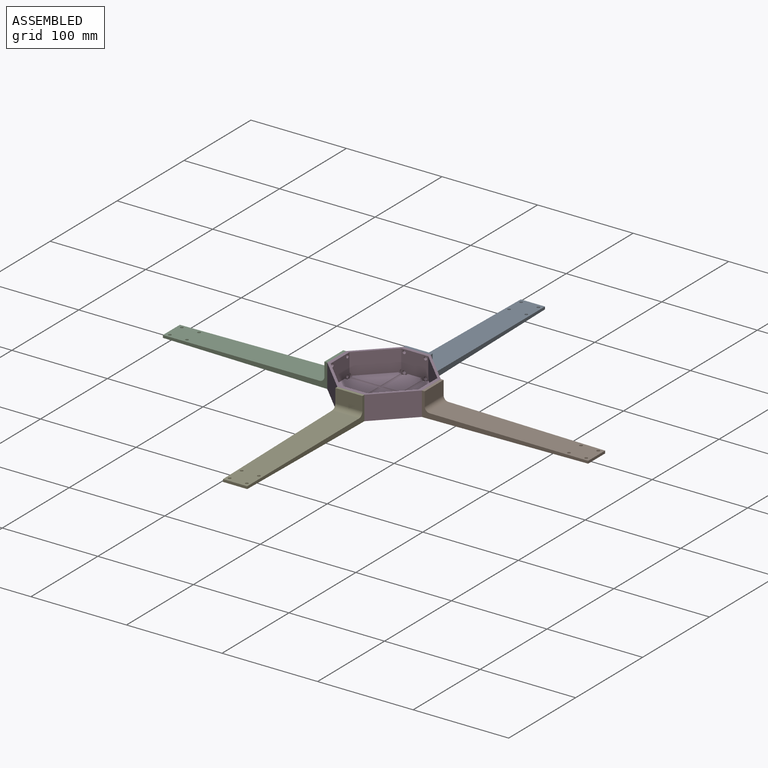
[diagram: assembled view]
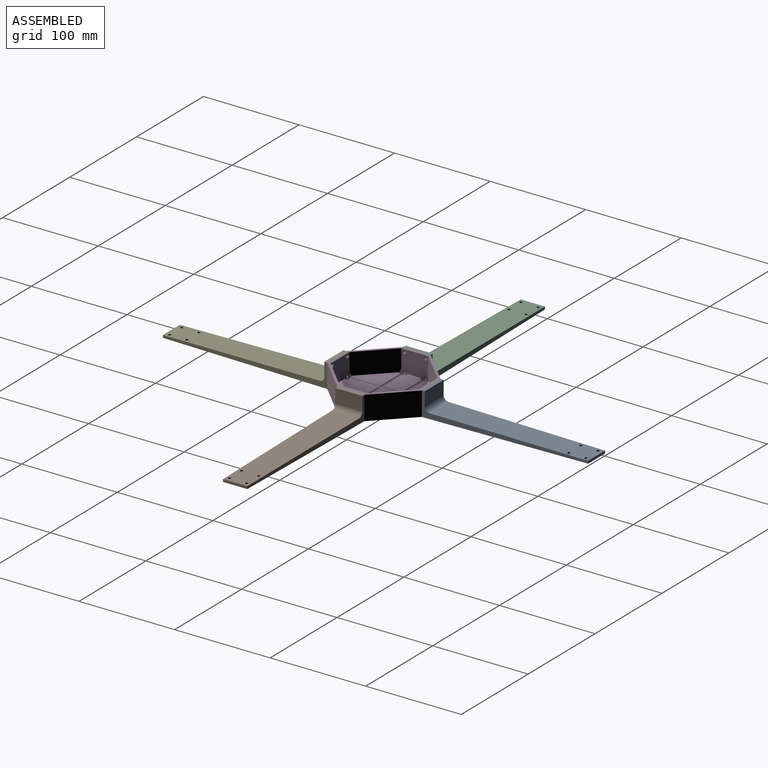
[diagram: assembled view, second angle]
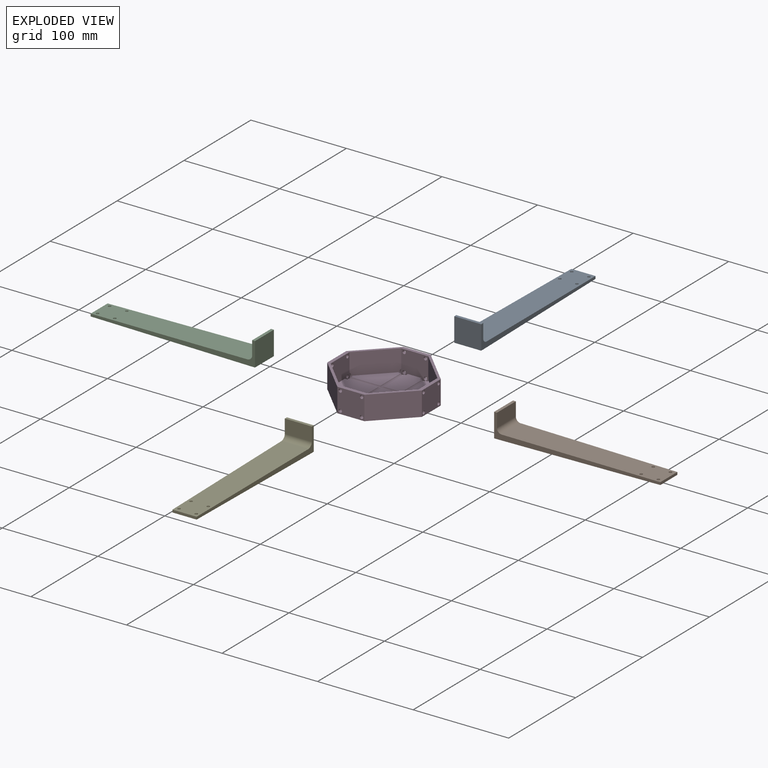
[diagram: exploded view]
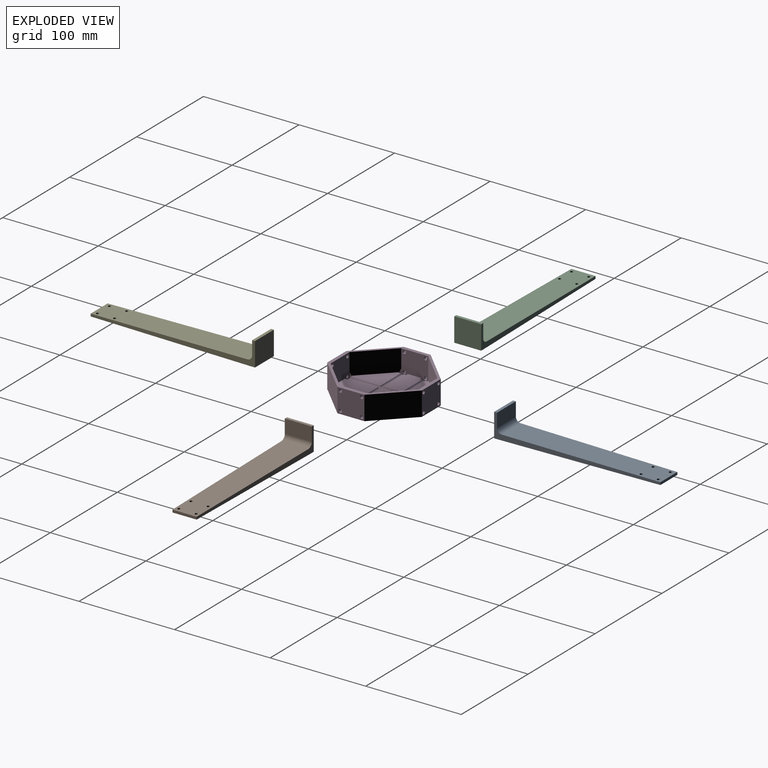
[diagram: exploded view, second angle]
ASSEMBLY  parts=5 mates=4
PART A: 16 faces, bbox 28.3x173x25 mm
  f0: plane 28.28x14.39mm, normal (0,-1,0), area 407.1mm2, adj f1,f2,f3,f11
  f1: plane 25x3mm, normal (1,0,0), area 75mm2, adj f0,f2,f4,f5,f9
  f2: plane 28.28x3mm, normal (0,0,1), area 84.9mm2, adj f0,f1,f3,f5
  f3: plane 25x3mm, normal (-1,0,0), area 75mm2, adj f0,f2,f4,f5,f7
  f4: plane 28.28x3mm, normal (0,0,-1), area 84.9mm2, adj f1,f3,f5,f8
  f5: plane 28.28x25mm, normal (0,1,0), area 707.1mm2, adj f1,f2,f3,f4
  f6: plane 165.04x28.2mm, normal (0,-0.01,1), area 4388mm2, adj f7,f9,f10,f11,f12,f13,f14,f15
  f7: plane 170.02x10.63mm, normal (-1,-0.01,0), area 713.7mm2, adj f3,f6,f8,f10,f11
  f8: plane 170x28.28mm, normal (0,-0.01,-1), area 4528mm2, adj f4,f7,f9,f10,f12,f13,f14,f15
  f9: plane 170.02x10.63mm, normal (1,-0.01,0), area 713.7mm2, adj f1,f6,f8,f10,f11
  f10: plane 25.32x2.68mm, normal (0,-1,0), area 67.9mm2, adj f6,f7,f8,f9
  f11: cylinder r=5mm len=28.28mm, axis (-1,0,0), area 220.6mm2, adj f0,f6,f7,f9
  f12: cylinder r=1.5mm len=3.13mm, axis (0,-0.01,1), area 29mm2, adj f6,f8
  f13: cylinder r=1.5mm len=3.02mm, axis (0,-0.01,1), area 26.1mm2, adj f6,f8
  f14: cylinder r=1.5mm len=3.02mm, axis (0,-0.01,1), area 26.1mm2, adj f6,f8
  f15: cylinder r=1.5mm len=3.13mm, axis (0,-0.01,1), area 29mm2, adj f6,f8
PART B: same geometry as A
PART C: same geometry as A
PART D: 79 faces, bbox 90x90x25 mm
  f0: plane 43.19x24.37mm, normal (0,0,1), area 581.2mm2, adj f5,f23,f48,f62,f63,f76,f77
  f1: plane 35.2x35.2mm, normal (0,0,1), area 615.5mm2, adj f21,f23,f31,f47,f73,f74,f76,f78
  f2: plane 43.19x24.37mm, normal (0,0,1), area 581.2mm2, adj f6,f21,f50,f67,f69,f73,f75
  f3: cylinder r=1.75mm len=4.98mm, axis (-0.71,-0.71,0), area 38.9mm2, adj f31,f32
  f4: cylinder r=1.75mm len=4.98mm, axis (-0.71,-0.71,0), area 38.9mm2, adj f31,f32
  f5: plane 45x22.5mm, normal (1,0,0), area 1006mm2, adj f0,f25,f31,f37,f62,f77
  f6: plane 45x22.5mm, normal (0,1,0), area 1006mm2, adj f2,f25,f31,f33,f67,f75
  f7: cylinder r=1.75mm len=4.98mm, axis (0.71,-0.71,0), area 38.9mm2, adj f33,f35
  f8: cylinder r=1.75mm len=4.98mm, axis (0.71,-0.71,0), area 38.9mm2, adj f33,f35
  f9: cylinder r=1.75mm len=4.98mm, axis (0.71,-0.71,0), area 38.9mm2, adj f37,f38
  f10: cylinder r=1.75mm len=4.98mm, axis (0.71,-0.71,0), area 38.9mm2, adj f37,f38
  f11: plane 43.19x24.37mm, normal (0,0,1), area 581.2mm2, adj f14,f41,f46,f56,f57,f64,f66
  f12: plane 35.2x35.2mm, normal (0,0,1), area 615.5mm2, adj f34,f40,f41,f45,f55,f57,f59,f60
  f13: plane 45x22.5mm, normal (-1,0,0), area 1006mm2, adj f15,f25,f33,f34,f58,f70
  f14: plane 45x22.5mm, normal (0,-1,0), area 1006mm2, adj f11,f25,f34,f37,f56,f64
  f15: plane 43.19x24.37mm, normal (0,0,1), area 581.2mm2, adj f13,f40,f49,f58,f60,f70,f72
  f16: cylinder r=1.75mm len=4.98mm, axis (-0.71,-0.71,0), area 38.9mm2, adj f34,f36
  f17: cylinder r=1.75mm len=4.98mm, axis (-0.71,-0.71,0), area 38.9mm2, adj f34,f36
  f18: plane 35.2x35.2mm, normal (0,0,1), area 615.5mm2, adj f24,f37,f46,f48,f61,f63,f65,f66
  f19: plane 26.77x26.77mm, normal (0,0,1), area 358.4mm2, adj f22,f24,f45,f47
  f20: plane 35.2x35.2mm, normal (0,0,1), area 615.5mm2, adj f22,f33,f49,f50,f68,f69,f71,f72
  f21: cylinder r=1.75mm len=25.15mm, axis (-0.71,-0.71,0), area 140.1mm2, adj f1,f2,f47,f50,f73
  f22: cylinder r=1.75mm len=18.13mm, axis (-0.71,-0.71,0), area 91.2mm2, adj f19,f20,f45,f47,f49,f50
  f23: cylinder r=1.75mm len=25.15mm, axis (-0.71,-0.71,0), area 140.1mm2, adj f0,f1,f47,f48,f76
  f24: cylinder r=1.75mm len=18.13mm, axis (-0.71,-0.71,0), area 91.2mm2, adj f18,f19,f45,f46,f47,f48
  f25: plane 90x90mm, normal (0,0,1), area 875mm2, adj f5,f6,f13,f14,f26,f27,f28,f29
  f26: plane 50x25mm, normal (1,0,0), area 1250mm2, adj f25,f30,f35,f36
  f27: plane 50x25mm, normal (0,1,0), area 1250mm2, adj f25,f30,f36,f38
  f28: plane 50x25mm, normal (-1,0,0), area 1250mm2, adj f25,f30,f32,f38
  f29: plane 50x25mm, normal (0,-1,0), area 1250mm2, adj f25,f30,f32,f35
  f30: plane 90x90mm, normal (0,0,-1), area 7189.9mm2, adj f26,f27,f28,f29,f31,f32,f33,f34
  f31: plane 25x21.41mm, normal (0.71,0.71,0), area 637.6mm2, adj f1,f3,f4,f5,f6,f25,f30,f43
  f32: plane 25x20mm, normal (-0.71,-0.71,0), area 668.6mm2, adj f3,f4,f25,f28,f29,f30,f43,f44
  f33: plane 25x21.41mm, normal (-0.71,0.71,0), area 637.6mm2, adj f6,f7,f8,f13,f20,f25,f30,f53
  f34: plane 25x21.41mm, normal (-0.71,-0.71,0), area 637.6mm2, adj f12,f13,f14,f16,f17,f25,f30,f39
  f35: plane 25x20mm, normal (0.71,-0.71,0), area 668.6mm2, adj f7,f8,f25,f26,f29,f30,f53,f54
  f36: plane 25x20mm, normal (0.71,0.71,0), area 668.6mm2, adj f16,f17,f25,f26,f27,f30,f39,f42
  f37: plane 25x21.41mm, normal (0.71,-0.71,0), area 637.6mm2, adj f5,f9,f10,f14,f18,f25,f30,f51
  f38: plane 25x20mm, normal (-0.71,0.71,0), area 668.6mm2, adj f9,f10,f25,f27,f28,f30,f51,f52
  f39: cylinder r=1.75mm len=4.98mm, axis (-0.71,-0.71,0), area 38.9mm2, adj f34,f36
  f40: cylinder r=1.75mm len=25.15mm, axis (-0.71,-0.71,0), area 140.1mm2, adj f12,f15,f45,f49,f60
  f41: cylinder r=1.75mm len=25.15mm, axis (-0.71,-0.71,0), area 140.1mm2, adj f11,f12,f45,f46,f57
  f42: cylinder r=1.75mm len=4.98mm, axis (-0.71,-0.71,0), area 38.9mm2, adj f34,f36
  f43: cylinder r=1.75mm len=4.98mm, axis (-0.71,-0.71,0), area 38.9mm2, adj f31,f32
  f44: cylinder r=1.75mm len=4.98mm, axis (-0.71,-0.71,0), area 38.9mm2, adj f31,f32
  f45: cylinder r=1.75mm len=18.13mm, axis (0.71,-0.71,0), area 91.2mm2, adj f12,f19,f22,f24,f40,f41
  f46: cylinder r=1.75mm len=25.15mm, axis (0.71,-0.71,0), area 140.1mm2, adj f11,f18,f24,f41,f66
  f47: cylinder r=1.75mm len=18.13mm, axis (0.71,-0.71,0), area 91.2mm2, adj f1,f19,f21,f22,f23,f24
  f48: cylinder r=1.75mm len=25.15mm, axis (0.71,-0.71,0), area 140.1mm2, adj f0,f18,f23,f24,f63
  f49: cylinder r=1.75mm len=25.15mm, axis (0.71,-0.71,0), area 140.1mm2, adj f15,f20,f22,f40,f72
  f50: cylinder r=1.75mm len=25.15mm, axis (0.71,-0.71,0), area 140.1mm2, adj f2,f20,f21,f22,f69
  f51: cylinder r=1.75mm len=4.98mm, axis (0.71,-0.71,0), area 38.9mm2, adj f37,f38
  f52: cylinder r=1.75mm len=4.98mm, axis (0.71,-0.71,0), area 38.9mm2, adj f37,f38
  f53: cylinder r=1.75mm len=4.98mm, axis (0.71,-0.71,0), area 38.9mm2, adj f33,f35
  f54: cylinder r=1.75mm len=4.98mm, axis (0.71,-0.71,0), area 38.9mm2, adj f33,f35
  f55: cylinder r=4mm len=2.77mm, axis (0.71,0.71,0), area 7.5mm2, adj f12,f30,f34,f57
  f56: cylinder r=4mm len=5.65mm, axis (0.71,0.71,0), area 9.9mm2, adj f11,f14,f30,f34,f57
  f57: plane 5.61x5.61mm, normal (0.71,0.71,0), area 14.4mm2, adj f11,f12,f30,f41,f55,f56
  f58: cylinder r=4mm len=5.65mm, axis (0.71,0.71,0), area 9.9mm2, adj f13,f15,f30,f34,f60
  f59: cylinder r=4mm len=2.77mm, axis (0.71,0.71,0), area 7.5mm2, adj f12,f30,f34,f60
  f60: plane 5.61x5.61mm, normal (0.71,0.71,0), area 14.4mm2, adj f12,f15,f30,f40,f58,f59
  f61: cylinder r=4mm len=2.77mm, axis (-0.71,0.71,0), area 7.5mm2, adj f18,f30,f37,f63
  f62: cylinder r=4mm len=5.65mm, axis (-0.71,0.71,0), area 9.9mm2, adj f0,f5,f30,f37,f63
  f63: plane 5.61x5.61mm, normal (-0.71,0.71,0), area 14.4mm2, adj f0,f18,f30,f48,f61,f62
  f64: cylinder r=4mm len=5.65mm, axis (-0.71,0.71,0), area 9.9mm2, adj f11,f14,f30,f37,f66
  f65: cylinder r=4mm len=2.77mm, axis (-0.71,0.71,0), area 7.5mm2, adj f18,f30,f37,f66
  f66: plane 5.61x5.61mm, normal (-0.71,0.71,0), area 14.4mm2, adj f11,f18,f30,f46,f64,f65
  f67: cylinder r=4mm len=5.65mm, axis (0.71,-0.71,0), area 9.9mm2, adj f2,f6,f30,f33,f69
  f68: cylinder r=4mm len=2.77mm, axis (0.71,-0.71,0), area 7.5mm2, adj f20,f30,f33,f69
  f69: plane 5.61x5.61mm, normal (0.71,-0.71,0), area 14.4mm2, adj f2,f20,f30,f50,f67,f68
  f70: cylinder r=4mm len=5.65mm, axis (0.71,-0.71,0), area 9.9mm2, adj f13,f15,f30,f33,f72
  f71: cylinder r=4mm len=2.77mm, axis (0.71,-0.71,0), area 7.5mm2, adj f20,f30,f33,f72
  f72: plane 5.61x5.61mm, normal (0.71,-0.71,0), area 14.4mm2, adj f15,f20,f30,f49,f70,f71
  f73: plane 5.61x5.61mm, normal (-0.71,-0.71,0), area 14.4mm2, adj f1,f2,f21,f30,f74,f75
  f74: cylinder r=4mm len=2.77mm, axis (-0.71,-0.71,0), area 7.5mm2, adj f1,f30,f31,f73
  f75: cylinder r=4mm len=5.65mm, axis (-0.71,-0.71,0), area 9.9mm2, adj f2,f6,f30,f31,f73
  f76: plane 5.61x5.61mm, normal (-0.71,-0.71,0), area 14.4mm2, adj f0,f1,f23,f30,f77,f78
  f77: cylinder r=4mm len=5.65mm, axis (-0.71,-0.71,0), area 9.9mm2, adj f0,f5,f30,f31,f76
  f78: cylinder r=4mm len=2.77mm, axis (-0.71,-0.71,0), area 7.5mm2, adj f1,f30,f31,f76
PART E: same geometry as A
PLACE A rot(axis=(0,0,1),180deg) t=(27.54,37.88,-6.25)mm
PLACE B rot(axis=(0,0,1),90deg) t=(77.04,-11.62,-6.25)mm
PLACE C rot(axis=(0,0,-1),90deg) t=(-21.96,-11.62,-6.25)mm
PLACE D rot(axis=(0,0,-1),45deg) t=(27.54,-11.62,-18.75)mm
PLACE E t=(27.54,-61.12,-6.25)mm
MATE fastened A.f5 <-> D.f38  axis (0,-1,0) through (27.54,37.88,-6.25)mm
MATE fastened D.f35 <-> E.f5  axis (0,-1,0) through (27.54,-61.12,-6.25)mm
MATE fastened B.f5 <-> D.f36  axis (-1,0,0) through (77.04,-11.62,-6.25)mm
MATE fastened C.f5 <-> D.f32  axis (1,0,0) through (-21.96,-11.62,-6.25)mm
